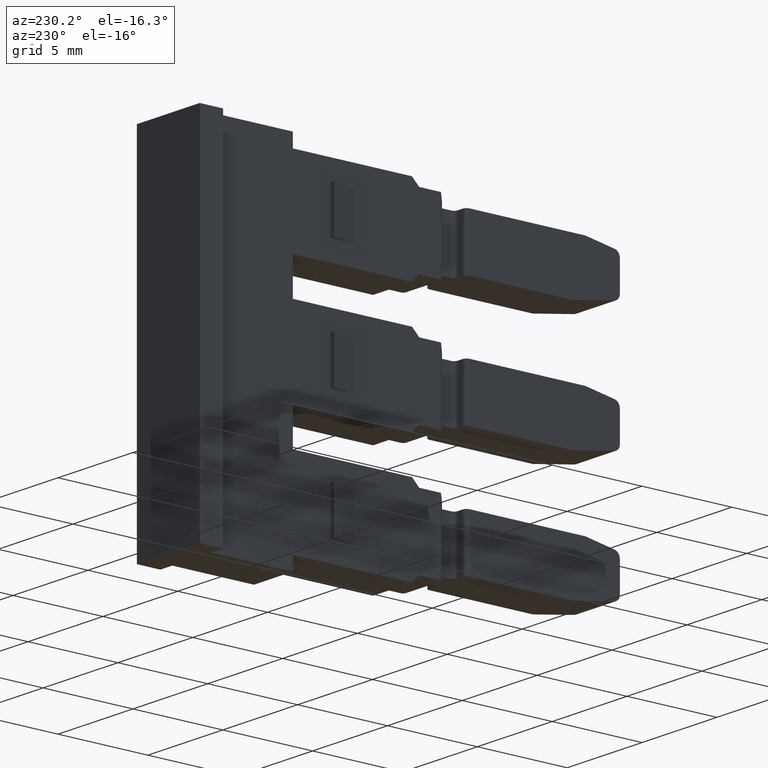
[diagram: clean part render]
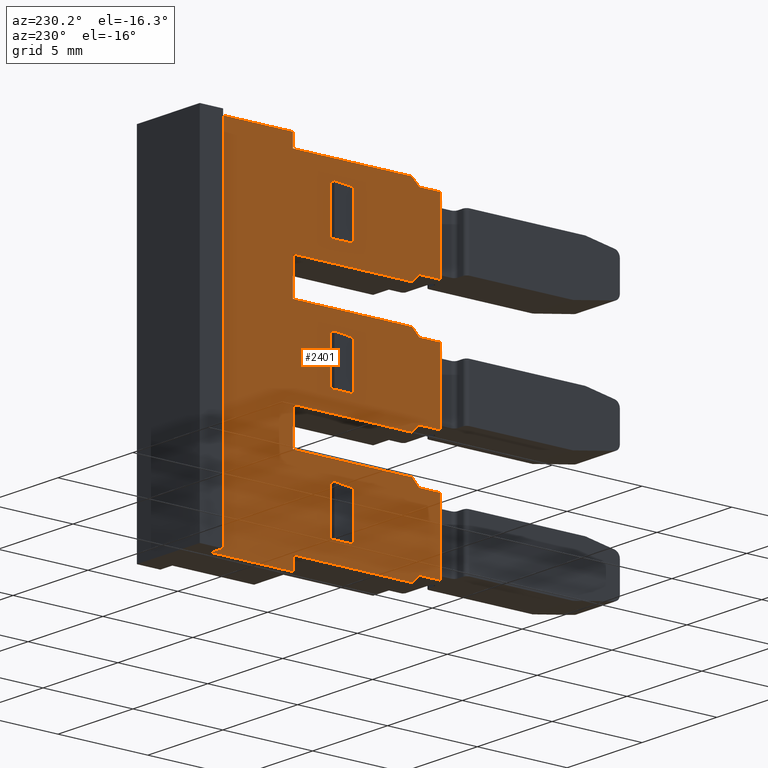
[diagram: same view with one face highlighted and labeled with its STEP entity id]
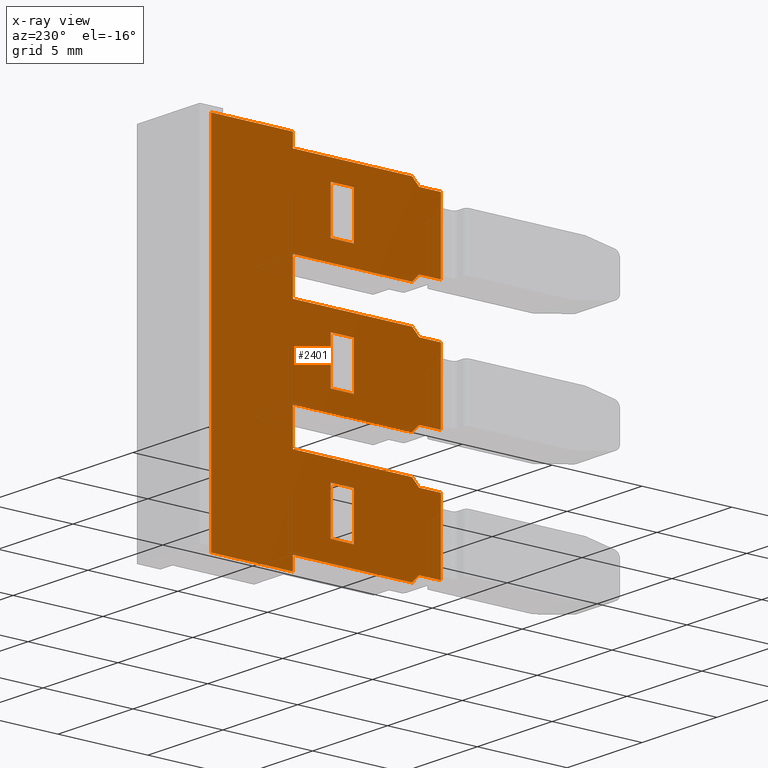
[diagram: x-ray of the same camera — body ghosted, the highlighted face saturated]
A machine part, auxiliary view. The second image highlights one B-rep face of the part: STEP entity #2401.
The next image is the same camera in x-ray: the body ghosted, the highlighted face saturated — about 0% of this face is hidden behind the body in this view.
In plain terms, the highlighted planar face has unit normal (-1, -0, -0).
Its self-contained STEP definition (entity closure, byte-faithful):
#57 = EDGE_LOOP ( 'NONE', ( #293, #287, #323, #309, #310, #345, #318, #368, #302, #358, #354, #321, #352, #331, #340, #339, #307, #289, #370, #375, #308, #334, #347, #346, #350, #306, #326, #304 ) ) ;
#62 = EDGE_LOOP ( 'NONE', ( #329, #367, #284, #335 ) ) ;
#79 = EDGE_LOOP ( 'NONE', ( #285, #299, #395, #400 ) ) ;
#86 = EDGE_LOOP ( 'NONE', ( #393, #324, #288, #327 ) ) ;
#284 = ORIENTED_EDGE ( 'NONE', *, *, #2499, .F. ) ;
#285 = ORIENTED_EDGE ( 'NONE', *, *, #2532, .T. ) ;
#287 = ORIENTED_EDGE ( 'NONE', *, *, #2589, .T. ) ;
#288 = ORIENTED_EDGE ( 'NONE', *, *, #2555, .T. ) ;
#289 = ORIENTED_EDGE ( 'NONE', *, *, #2605, .T. ) ;
#293 = ORIENTED_EDGE ( 'NONE', *, *, #2526, .T. ) ;
#299 = ORIENTED_EDGE ( 'NONE', *, *, #2543, .T. ) ;
#302 = ORIENTED_EDGE ( 'NONE', *, *, #2606, .F. ) ;
#304 = ORIENTED_EDGE ( 'NONE', *, *, #2578, .T. ) ;
#306 = ORIENTED_EDGE ( 'NONE', *, *, #2537, .T. ) ;
#307 = ORIENTED_EDGE ( 'NONE', *, *, #2506, .F. ) ;
#308 = ORIENTED_EDGE ( 'NONE', *, *, #2542, .F. ) ;
#309 = ORIENTED_EDGE ( 'NONE', *, *, #2564, .T. ) ;
#310 = ORIENTED_EDGE ( 'NONE', *, *, #2539, .F. ) ;
#318 = ORIENTED_EDGE ( 'NONE', *, *, #2544, .T. ) ;
#321 = ORIENTED_EDGE ( 'NONE', *, *, #2536, .T. ) ;
#323 = ORIENTED_EDGE ( 'NONE', *, *, #2615, .T. ) ;
#324 = ORIENTED_EDGE ( 'NONE', *, *, #2591, .T. ) ;
#326 = ORIENTED_EDGE ( 'NONE', *, *, #2442, .T. ) ;
#327 = ORIENTED_EDGE ( 'NONE', *, *, #2618, .F. ) ;
#329 = ORIENTED_EDGE ( 'NONE', *, *, #2463, .T. ) ;
#331 = ORIENTED_EDGE ( 'NONE', *, *, #2515, .F. ) ;
#334 = ORIENTED_EDGE ( 'NONE', *, *, #2608, .F. ) ;
#335 = ORIENTED_EDGE ( 'NONE', *, *, #2473, .F. ) ;
#339 = ORIENTED_EDGE ( 'NONE', *, *, #2480, .F. ) ;
#340 = ORIENTED_EDGE ( 'NONE', *, *, #2530, .T. ) ;
#345 = ORIENTED_EDGE ( 'NONE', *, *, #2602, .F. ) ;
#346 = ORIENTED_EDGE ( 'NONE', *, *, #2621, .F. ) ;
#347 = ORIENTED_EDGE ( 'NONE', *, *, #2614, .T. ) ;
#350 = ORIENTED_EDGE ( 'NONE', *, *, #2595, .F. ) ;
#352 = ORIENTED_EDGE ( 'NONE', *, *, #2475, .F. ) ;
#354 = ORIENTED_EDGE ( 'NONE', *, *, #2483, .T. ) ;
#358 = ORIENTED_EDGE ( 'NONE', *, *, #2612, .T. ) ;
#367 = ORIENTED_EDGE ( 'NONE', *, *, #2467, .T. ) ;
#368 = ORIENTED_EDGE ( 'NONE', *, *, #2552, .F. ) ;
#370 = ORIENTED_EDGE ( 'NONE', *, *, #2613, .T. ) ;
#375 = ORIENTED_EDGE ( 'NONE', *, *, #2575, .T. ) ;
#393 = ORIENTED_EDGE ( 'NONE', *, *, #2554, .F. ) ;
#395 = ORIENTED_EDGE ( 'NONE', *, *, #2582, .F. ) ;
#400 = ORIENTED_EDGE ( 'NONE', *, *, #2616, .F. ) ;
#776 = VERTEX_POINT ( 'NONE', #3822 ) ;
#779 = VERTEX_POINT ( 'NONE', #3806 ) ;
#789 = VERTEX_POINT ( 'NONE', #3812 ) ;
#790 = VERTEX_POINT ( 'NONE', #3828 ) ;
#795 = VERTEX_POINT ( 'NONE', #3838 ) ;
#798 = VERTEX_POINT ( 'NONE', #3836 ) ;
#800 = VERTEX_POINT ( 'NONE', #3837 ) ;
#806 = VERTEX_POINT ( 'NONE', #2761 ) ;
#812 = VERTEX_POINT ( 'NONE', #2780 ) ;
#814 = VERTEX_POINT ( 'NONE', #3840 ) ;
#815 = VERTEX_POINT ( 'NONE', #2805 ) ;
#817 = VERTEX_POINT ( 'NONE', #2749 ) ;
#820 = VERTEX_POINT ( 'NONE', #2754 ) ;
#826 = VERTEX_POINT ( 'NONE', #2788 ) ;
#827 = VERTEX_POINT ( 'NONE', #2753 ) ;
#831 = VERTEX_POINT ( 'NONE', #2789 ) ;
#832 = VERTEX_POINT ( 'NONE', #2765 ) ;
#836 = VERTEX_POINT ( 'NONE', #2800 ) ;
#837 = VERTEX_POINT ( 'NONE', #2791 ) ;
#840 = VERTEX_POINT ( 'NONE', #2785 ) ;
#974 = VECTOR ( 'NONE', #3450, 1000.000000000000000 ) ;
#976 = AXIS2_PLACEMENT_3D ( 'NONE', #3326, #3308, #3297 ) ;
#1000 = VECTOR ( 'NONE', #3567, 1000.000000000000100 ) ;
#1006 = VECTOR ( 'NONE', #3580, 1000.000000000000000 ) ;
#1019 = VECTOR ( 'NONE', #3623, 1000.000000000000000 ) ;
#1025 = VECTOR ( 'NONE', #3541, 1000.000000000000000 ) ;
#1027 = VECTOR ( 'NONE', #3612, 1000.000000000000100 ) ;
#1050 = VECTOR ( 'NONE', #3609, 1000.000000000000200 ) ;
#1053 = VECTOR ( 'NONE', #1473, 1000.000000000000000 ) ;
#1069 = VECTOR ( 'NONE', #1461, 1000.000000000000000 ) ;
#1071 = VECTOR ( 'NONE', #1442, 1000.000000000000100 ) ;
#1073 = VECTOR ( 'NONE', #1430, 1000.000000000000200 ) ;
#1077 = VECTOR ( 'NONE', #1476, 1000.000000000000200 ) ;
#1078 = VECTOR ( 'NONE', #1458, 1000.000000000000200 ) ;
#1079 = VECTOR ( 'NONE', #1507, 1000.000000000000100 ) ;
#1081 = VECTOR ( 'NONE', #1516, 1000.000000000000000 ) ;
#1093 = VECTOR ( 'NONE', #3672, 1000.000000000000100 ) ;
#1095 = VECTOR ( 'NONE', #1505, 1000.000000000000000 ) ;
#1096 = VECTOR ( 'NONE', #3651, 1000.000000000000100 ) ;
#1102 = VECTOR ( 'NONE', #1452, 1000.000000000000100 ) ;
#1114 = VECTOR ( 'NONE', #1616, 1000.000000000000200 ) ;
#1128 = VECTOR ( 'NONE', #1636, 1000.000000000000200 ) ;
#1132 = VECTOR ( 'NONE', #1502, 1000.000000000000000 ) ;
#1133 = VECTOR ( 'NONE', #1702, 1000.000000000000200 ) ;
#1138 = VECTOR ( 'NONE', #1556, 1000.000000000000200 ) ;
#1143 = VECTOR ( 'NONE', #1633, 1000.000000000000100 ) ;
#1145 = VECTOR ( 'NONE', #1674, 1000.000000000000200 ) ;
#1149 = VECTOR ( 'NONE', #1597, 1000.000000000000000 ) ;
#1153 = VECTOR ( 'NONE', #1488, 1000.000000000000200 ) ;
#1154 = VECTOR ( 'NONE', #1492, 1000.000000000000000 ) ;
#1158 = VECTOR ( 'NONE', #1657, 1000.000000000000100 ) ;
#1167 = VECTOR ( 'NONE', #1586, 1000.000000000000100 ) ;
#1174 = VECTOR ( 'NONE', #1694, 1000.000000000000200 ) ;
#1188 = VECTOR ( 'NONE', #1667, 1000.000000000000000 ) ;
#1190 = VECTOR ( 'NONE', #1671, 1000.000000000000000 ) ;
#1206 = VECTOR ( 'NONE', #1682, 1000.000000000000100 ) ;
#1208 = VECTOR ( 'NONE', #1747, 1000.000000000000200 ) ;
#1226 = VECTOR ( 'NONE', #1697, 1000.000000000000200 ) ;
#1227 = VECTOR ( 'NONE', #1733, 1000.000000000000100 ) ;
#1229 = VECTOR ( 'NONE', #1689, 1000.000000000000000 ) ;
#1231 = VECTOR ( 'NONE', #1677, 1000.000000000000000 ) ;
#1423 = LINE ( 'NONE', #1435, #1073 ) ;
#1430 = DIRECTION ( 'NONE',  ( -9.483855583750710300E-006, 0.9999999999550282000, -3.252725060354459100E-020 ) ) ;
#1435 = CARTESIAN_POINT ( 'NONE',  ( 1390.782561220172500, 1065.079098784066700, -1.950000000030801100 ) ) ;
#1436 = LINE ( 'NONE', #1510, #1095 ) ;
#1442 = DIRECTION ( 'NONE',  ( -9.483855581202906400E-006, 0.9999999999550282000, 0.0000000000000000000 ) ) ;
#1445 = CARTESIAN_POINT ( 'NONE',  ( 1390.782452648993700, 1076.657098783514800, -50.53084736897823600 ) ) ;
#1449 = LINE ( 'NONE', #1465, #1071 ) ;
#1452 = DIRECTION ( 'NONE',  ( -6.706098594455108100E-006, 0.7071067812184009800, -0.7071067811228941600 ) ) ;
#1456 = CARTESIAN_POINT ( 'NONE',  ( 1390.782475884440100, 1074.207098783628000, 9.050000000002389900 ) ) ;
#1457 = LINE ( 'NONE', #1471, #1078 ) ;
#1458 = DIRECTION ( 'NONE',  ( 9.483855583750710300E-006, -0.9999999999550282000, -1.120342500458063800E-016 ) ) ;
#1460 = LINE ( 'NONE', #1480, #1069 ) ;
#1461 = DIRECTION ( 'NONE',  ( -1.715311605593040000E-015, 4.605397349032985700E-014, 1.000000000000000000 ) ) ;
#1465 = CARTESIAN_POINT ( 'NONE',  ( 1390.782528045951300, 1068.707091196431500, -7.950000000000238200 ) ) ;
#1471 = CARTESIAN_POINT ( 'NONE',  ( 1390.782475884440100, 1074.077098783628100, -2.349999999997618000 ) ) ;
#1473 = DIRECTION ( 'NONE',  ( 1.715374260960958300E-015, -5.266050259226225000E-014, -1.000000000000000000 ) ) ;
#1474 = LINE ( 'NONE', #1456, #1077 ) ;
#1475 = LINE ( 'NONE', #1445, #1053 ) ;
#1476 = DIRECTION ( 'NONE',  ( -9.483855583750710300E-006, 0.9999999999550282000, 2.241010273421988200E-016 ) ) ;
#1479 = LINE ( 'NONE', #1481, #1102 ) ;
#1480 = CARTESIAN_POINT ( 'NONE',  ( 1390.782572619766800, 1063.877098784086000, -50.53084736897763200 ) ) ;
#1481 = CARTESIAN_POINT ( 'NONE',  ( 1390.782561219066800, 1065.079215367943600, -8.650091928178602200 ) ) ;
#1482 = CARTESIAN_POINT ( 'NONE',  ( 1390.782561220172500, 1065.079098784064400, -4.749999999964431100 ) ) ;
#1484 = CARTESIAN_POINT ( 'NONE',  ( 1390.782561219066800, 1065.079215367945800, 4.749908071821398200 ) ) ;
#1485 = LINE ( 'NONE', #1494, #1132 ) ;
#1488 = DIRECTION ( 'NONE',  ( 9.483855583750710300E-006, -0.9999999999550282000, 3.252725060354459100E-020 ) ) ;
#1492 = DIRECTION ( 'NONE',  ( 0.0000000000000000000, 0.0000000000000000000, 1.000000000000000000 ) ) ;
#1494 = CARTESIAN_POINT ( 'NONE',  ( 1390.782515716939100, 1070.007091196375300, 5.449999999999762100 ) ) ;
#1500 = CARTESIAN_POINT ( 'NONE',  ( 1390.782528045951300, 1068.707091196433800, 5.449999999999762100 ) ) ;
#1502 = DIRECTION ( 'NONE',  ( 0.0000000000000000000, 0.0000000000000000000, 1.000000000000000000 ) ) ;
#1505 = DIRECTION ( 'NONE',  ( 0.0000000000000000000, 0.0000000000000000000, 1.000000000000000000 ) ) ;
#1506 = CARTESIAN_POINT ( 'NONE',  ( 1390.782572619766800, 1063.877098784083700, -57.23084736897762800 ) ) ;
#1507 = DIRECTION ( 'NONE',  ( -6.706098594455108100E-006, 0.7071067812184009800, -0.7071067811228941600 ) ) ;
#1509 = LINE ( 'NONE', #1484, #1079 ) ;
#1510 = CARTESIAN_POINT ( 'NONE',  ( 1390.782515716939100, 1070.007091196373000, -7.950000000000238200 ) ) ;
#1511 = LINE ( 'NONE', #1506, #1081 ) ;
#1516 = DIRECTION ( 'NONE',  ( -1.715311605593040000E-015, 4.605397349032985700E-014, 1.000000000000000000 ) ) ;
#1517 = LINE ( 'NONE', #1482, #1153 ) ;
#1525 = LINE ( 'NONE', #1500, #1154 ) ;
#1535 = CARTESIAN_POINT ( 'NONE',  ( 1390.782475884440100, 1074.077098783625800, -9.049999999997618600 ) ) ;
#1555 = LINE ( 'NONE', #1535, #1138 ) ;
#1556 = DIRECTION ( 'NONE',  ( 9.483855583750710300E-006, -0.9999999999550282000, -1.120342500458063800E-016 ) ) ;
#1578 = CARTESIAN_POINT ( 'NONE',  ( 1390.782528045951300, 1068.707091196431500, -5.450000000000237300 ) ) ;
#1586 = DIRECTION ( 'NONE',  ( -9.483855581202906400E-006, 0.9999999999550282000, 0.0000000000000000000 ) ) ;
#1590 = LINE ( 'NONE', #1614, #1149 ) ;
#1593 = LINE ( 'NONE', #1604, #1114 ) ;
#1597 = DIRECTION ( 'NONE',  ( -9.483855604477593000E-006, 0.9999999999550282000, -3.252725063136165800E-020 ) ) ;
#1604 = CARTESIAN_POINT ( 'NONE',  ( 1390.782475884440100, 1074.207098783628000, 4.350000000002387100 ) ) ;
#1614 = CARTESIAN_POINT ( 'NONE',  ( 1390.782452648993700, 1076.657098783515500, 9.800000000002382800 ) ) ;
#1615 = LINE ( 'NONE', #1578, #1167 ) ;
#1616 = DIRECTION ( 'NONE',  ( 9.483855583750710300E-006, -0.9999999999550282000, -1.120342500458063800E-016 ) ) ;
#1624 = LINE ( 'NONE', #1625, #1145 ) ;
#1625 = CARTESIAN_POINT ( 'NONE',  ( 1390.782561220172500, 1065.079098784064400, -8.650000000030800600 ) ) ;
#1633 = DIRECTION ( 'NONE',  ( 6.706098596880307400E-006, -0.7071067812184009800, -0.7071067811228941600 ) ) ;
#1636 = DIRECTION ( 'NONE',  ( 9.483855583750710300E-006, -0.9999999999550282000, 3.252725060428649500E-020 ) ) ;
#1641 = CARTESIAN_POINT ( 'NONE',  ( 1390.782528045951300, 1068.707091196433800, 5.449999999999762100 ) ) ;
#1643 = LINE ( 'NONE', #1645, #1128 ) ;
#1645 = CARTESIAN_POINT ( 'NONE',  ( 1390.782441742559700, 1077.807098783458300, -9.799999999942420100 ) ) ;
#1647 = LINE ( 'NONE', #1648, #1143 ) ;
#1648 = CARTESIAN_POINT ( 'NONE',  ( 1390.782561219066800, 1065.079215367945800, 8.650091928183364600 ) ) ;
#1656 = LINE ( 'NONE', #1641, #1158 ) ;
#1657 = DIRECTION ( 'NONE',  ( -9.483855581202906400E-006, 0.9999999999550282000, 0.0000000000000000000 ) ) ;
#1666 = CARTESIAN_POINT ( 'NONE',  ( 1390.782528045951300, 1068.707091196431500, -7.950000000000238200 ) ) ;
#1667 = DIRECTION ( 'NONE',  ( 0.0000000000000000000, 0.0000000000000000000, 1.000000000000000000 ) ) ;
#1671 = DIRECTION ( 'NONE',  ( -1.715374260960958300E-015, 5.266050259225974500E-014, 1.000000000000000000 ) ) ;
#1672 = LINE ( 'NONE', #1693, #1226 ) ;
#1673 = LINE ( 'NONE', #1688, #1229 ) ;
#1674 = DIRECTION ( 'NONE',  ( -9.483855583750710300E-006, 0.9999999999550282000, -3.252725060354459100E-020 ) ) ;
#1677 = DIRECTION ( 'NONE',  ( -1.715311605593040000E-015, 4.605397349032985700E-014, 1.000000000000000000 ) ) ;
#1678 = CARTESIAN_POINT ( 'NONE',  ( 1390.782475884440100, 1074.077098783628100, 2.350000000002384800 ) ) ;
#1680 = LINE ( 'NONE', #1698, #1174 ) ;
#1682 = DIRECTION ( 'NONE',  ( 6.706098596880307400E-006, -0.7071067812184009800, -0.7071067811228941600 ) ) ;
#1683 = CARTESIAN_POINT ( 'NONE',  ( 1390.782495781569200, 1072.109098783714900, -50.53084736897798700 ) ) ;
#1684 = LINE ( 'NONE', #1678, #1133 ) ;
#1688 = CARTESIAN_POINT ( 'NONE',  ( 1390.782495781569000, 1072.109098783723100, -10.84999999986497200 ) ) ;
#1689 = DIRECTION ( 'NONE',  ( -1.714874836513625000E-015, 1.626362526272112000E-020, 1.000000000000000000 ) ) ;
#1693 = CARTESIAN_POINT ( 'NONE',  ( 1390.782561220172500, 1065.079098784066700, 4.749999999969201500 ) ) ;
#1694 = DIRECTION ( 'NONE',  ( -9.483855583750710300E-006, 0.9999999999550282000, 2.241010273421988200E-016 ) ) ;
#1697 = DIRECTION ( 'NONE',  ( -9.483855583750710300E-006, 0.9999999999550282000, -3.252725060354459100E-020 ) ) ;
#1698 = CARTESIAN_POINT ( 'NONE',  ( 1390.782475884440100, 1074.077098783625800, -4.349999999997614900 ) ) ;
#1699 = CARTESIAN_POINT ( 'NONE',  ( 1390.782561219066800, 1065.079215367943600, -4.749908071816631300 ) ) ;
#1702 = DIRECTION ( 'NONE',  ( -9.483855583750710300E-006, 0.9999999999550282000, 2.241010273421988200E-016 ) ) ;
#1704 = LINE ( 'NONE', #1708, #1231 ) ;
#1705 = LINE ( 'NONE', #1699, #1206 ) ;
#1706 = LINE ( 'NONE', #1683, #1190 ) ;
#1708 = CARTESIAN_POINT ( 'NONE',  ( 1390.782572619766800, 1063.877098784085800, -50.53084736897763200 ) ) ;
#1711 = LINE ( 'NONE', #1666, #1188 ) ;
#1728 = LINE ( 'NONE', #1754, #1208 ) ;
#1732 = CARTESIAN_POINT ( 'NONE',  ( 1390.782528045951300, 1068.707091196433800, 7.949999999999763000 ) ) ;
#1733 = DIRECTION ( 'NONE',  ( -9.483855581202906400E-006, 0.9999999999550282000, 0.0000000000000000000 ) ) ;
#1747 = DIRECTION ( 'NONE',  ( 9.483855583750710300E-006, -0.9999999999550282000, 3.252725060354459100E-020 ) ) ;
#1754 = CARTESIAN_POINT ( 'NONE',  ( 1390.782561220172500, 1065.079098784066700, 8.650000000035568300 ) ) ;
#1755 = LINE ( 'NONE', #1732, #1227 ) ;
#2134 = CARTESIAN_POINT ( 'NONE',  ( 1390.782495781569200, 1072.109098783715600, 9.800000000002382800 ) ) ;
#2141 = CARTESIAN_POINT ( 'NONE',  ( 1390.782515716939100, 1070.007091196375300, -1.250000000000237800 ) ) ;
#2152 = CARTESIAN_POINT ( 'NONE',  ( 1390.782557426396400, 1065.479123439818300, 2.350000000002382600 ) ) ;
#2174 = CARTESIAN_POINT ( 'NONE',  ( 1390.782515716939100, 1070.007091196375300, 1.249999999999762600 ) ) ;
#2189 = CARTESIAN_POINT ( 'NONE',  ( 1390.782561219938800, 1065.079123439797700, -1.950000000030730700 ) ) ;
#2194 = CARTESIAN_POINT ( 'NONE',  ( 1390.782572619766800, 1063.877098784088700, -1.950000000030801300 ) ) ;
#2197 = CARTESIAN_POINT ( 'NONE',  ( 1390.782495781569000, 1072.109098783715400, -4.349999999997648600 ) ) ;
#2201 = CARTESIAN_POINT ( 'NONE',  ( 1390.782528045951300, 1068.707091196433800, -1.250000000000237800 ) ) ;
#2209 = CARTESIAN_POINT ( 'NONE',  ( 1390.782572619766800, 1063.877098784086500, -8.650000000030800600 ) ) ;
#2210 = CARTESIAN_POINT ( 'NONE',  ( 1390.782452648993700, 1076.657098783515500, 9.800000000002382800 ) ) ;
#2212 = CARTESIAN_POINT ( 'NONE',  ( 1390.782572619766800, 1063.877098784088500, 1.950000000035568600 ) ) ;
#2222 = CARTESIAN_POINT ( 'NONE',  ( 1390.782557426396400, 1065.479123439818500, -2.349999999997617100 ) ) ;
#2230 = CARTESIAN_POINT ( 'NONE',  ( 1390.782495781569000, 1072.109098783725400, -2.349999999997616200 ) ) ;
#2233 = CARTESIAN_POINT ( 'NONE',  ( 1390.782528045717800, 1068.707091196433800, 1.249999999999772200 ) ) ;
#2249 = CARTESIAN_POINT ( 'NONE',  ( 1390.782495781569200, 1072.109098783718100, 9.050000000002389900 ) ) ;
#2267 = CARTESIAN_POINT ( 'NONE',  ( 1390.782495781569000, 1072.109098783717600, 2.350000000002352000 ) ) ;
#2282 = CARTESIAN_POINT ( 'NONE',  ( 1390.782452648993700, 1076.657098783515000, -9.799999999942288700 ) ) ;
#2290 = CARTESIAN_POINT ( 'NONE',  ( 1390.782561219938800, 1065.079123439795700, -8.650000000030729600 ) ) ;
#2291 = CARTESIAN_POINT ( 'NONE',  ( 1390.782561219938800, 1065.079123439802700, 1.950000000040209600 ) ) ;
#2297 = CARTESIAN_POINT ( 'NONE',  ( 1390.782561219938800, 1065.079123439800500, -4.749999999959790400 ) ) ;
#2401 = ADVANCED_FACE ( 'NONE', ( #3324, #3325, #3341, #3302 ), #3319, .T. ) ;
#2442 = EDGE_CURVE ( 'NONE', #3802, #3752, #3459, .T. ) ;
#2463 = EDGE_CURVE ( 'NONE', #3762, #3756, #3548, .T. ) ;
#2467 = EDGE_CURVE ( 'NONE', #3756, #3755, #3539, .T. ) ;
#2473 = EDGE_CURVE ( 'NONE', #3762, #3766, #3574, .T. ) ;
#2475 = EDGE_CURVE ( 'NONE', #3814, #3810, #3544, .T. ) ;
#2480 = EDGE_CURVE ( 'NONE', #3848, #3764, #3618, .T. ) ;
#2483 = EDGE_CURVE ( 'NONE', #3771, #3821, #3585, .T. ) ;
#2499 = EDGE_CURVE ( 'NONE', #3766, #3755, #3633, .T. ) ;
#2506 = EDGE_CURVE ( 'NONE', #3746, #3848, #3660, .T. ) ;
#2515 = EDGE_CURVE ( 'NONE', #3765, #3814, #1423, .T. ) ;
#2526 = EDGE_CURVE ( 'NONE', #3813, #3860, #1475, .T. ) ;
#2530 = EDGE_CURVE ( 'NONE', #3765, #3764, #1460, .T. ) ;
#2532 = EDGE_CURVE ( 'NONE', #840, #817, #1449, .T. ) ;
#2536 = EDGE_CURVE ( 'NONE', #3821, #3810, #1457, .T. ) ;
#2537 = EDGE_CURVE ( 'NONE', #800, #3802, #1474, .T. ) ;
#2539 = EDGE_CURVE ( 'NONE', #3841, #789, #1479, .T. ) ;
#2542 = EDGE_CURVE ( 'NONE', #790, #827, #1509, .T. ) ;
#2543 = EDGE_CURVE ( 'NONE', #817, #806, #1436, .T. ) ;
#2544 = EDGE_CURVE ( 'NONE', #3804, #832, #1511, .T. ) ;
#2552 = EDGE_CURVE ( 'NONE', #3854, #832, #1517, .T. ) ;
#2554 = EDGE_CURVE ( 'NONE', #798, #814, #1525, .T. ) ;
#2555 = EDGE_CURVE ( 'NONE', #837, #776, #1485, .T. ) ;
#2564 = EDGE_CURVE ( 'NONE', #815, #789, #1555, .T. ) ;
#2575 = EDGE_CURVE ( 'NONE', #836, #827, #1593, .T. ) ;
#2578 = EDGE_CURVE ( 'NONE', #3752, #3813, #1590, .T. ) ;
#2582 = EDGE_CURVE ( 'NONE', #820, #806, #1615, .T. ) ;
#2589 = EDGE_CURVE ( 'NONE', #3860, #779, #1643, .T. ) ;
#2591 = EDGE_CURVE ( 'NONE', #798, #837, #1656, .T. ) ;
#2595 = EDGE_CURVE ( 'NONE', #800, #831, #1647, .T. ) ;
#2602 = EDGE_CURVE ( 'NONE', #3804, #3841, #1624, .T. ) ;
#2605 = EDGE_CURVE ( 'NONE', #3746, #3856, #1684, .T. ) ;
#2606 = EDGE_CURVE ( 'NONE', #826, #3854, #1705, .T. ) ;
#2608 = EDGE_CURVE ( 'NONE', #795, #790, #1672, .T. ) ;
#2612 = EDGE_CURVE ( 'NONE', #826, #3771, #1680, .T. ) ;
#2613 = EDGE_CURVE ( 'NONE', #3856, #836, #1706, .T. ) ;
#2614 = EDGE_CURVE ( 'NONE', #795, #812, #1704, .T. ) ;
#2615 = EDGE_CURVE ( 'NONE', #779, #815, #1673, .T. ) ;
#2616 = EDGE_CURVE ( 'NONE', #840, #820, #1711, .T. ) ;
#2618 = EDGE_CURVE ( 'NONE', #814, #776, #1755, .T. ) ;
#2621 = EDGE_CURVE ( 'NONE', #831, #812, #1728, .T. ) ;
#2749 = CARTESIAN_POINT ( 'NONE',  ( 1390.782515716939100, 1070.007091196373000, -7.950000000000238200 ) ) ;
#2753 = CARTESIAN_POINT ( 'NONE',  ( 1390.782557426396400, 1065.479123439818500, 4.350000000002383500 ) ) ;
#2754 = CARTESIAN_POINT ( 'NONE',  ( 1390.782528045717800, 1068.707091196431500, -5.450000000000228400 ) ) ;
#2761 = CARTESIAN_POINT ( 'NONE',  ( 1390.782515716939100, 1070.007091196373000, -5.450000000000237300 ) ) ;
#2765 = CARTESIAN_POINT ( 'NONE',  ( 1390.782572619766800, 1063.877098784086200, -4.749999999964432000 ) ) ;
#2780 = CARTESIAN_POINT ( 'NONE',  ( 1390.782572619766800, 1063.877098784088500, 8.650000000035568300 ) ) ;
#2785 = CARTESIAN_POINT ( 'NONE',  ( 1390.782528045951300, 1068.707091196431500, -7.950000000000238200 ) ) ;
#2788 = CARTESIAN_POINT ( 'NONE',  ( 1390.782557426396400, 1065.479123439816000, -4.349999999997617600 ) ) ;
#2789 = CARTESIAN_POINT ( 'NONE',  ( 1390.782561219938800, 1065.079123439802700, 8.650000000040202900 ) ) ;
#2791 = CARTESIAN_POINT ( 'NONE',  ( 1390.782515716705300, 1070.007091196375300, 5.449999999999762100 ) ) ;
#2800 = CARTESIAN_POINT ( 'NONE',  ( 1390.782495781569200, 1072.109098783717900, 4.350000000002387100 ) ) ;
#2805 = CARTESIAN_POINT ( 'NONE',  ( 1390.782495781569000, 1072.109098783723100, -9.049999999997615100 ) ) ;
#3297 = DIRECTION ( 'NONE',  ( 9.483855583750710300E-006, -0.9999999999550282000, 0.0000000000000000000 ) ) ;
#3302 = FACE_BOUND ( 'NONE', #79, .T. ) ;
#3308 = DIRECTION ( 'NONE',  ( -0.9999999999550283100, -9.483855583750712000E-006, -1.714874836282262200E-015 ) ) ;
#3319 = PLANE ( 'NONE',  #976 ) ;
#3324 = FACE_OUTER_BOUND ( 'NONE', #57, .T. ) ;
#3325 = FACE_BOUND ( 'NONE', #86, .T. ) ;
#3326 = CARTESIAN_POINT ( 'NONE',  ( 1390.782475884440100, 1074.077098783628100, -50.53084736897810100 ) ) ;
#3341 = FACE_BOUND ( 'NONE', #62, .T. ) ;
#3450 = DIRECTION ( 'NONE',  ( -1.715374260960958300E-015, 5.266050259225974500E-014, 1.000000000000000000 ) ) ;
#3459 = LINE ( 'NONE', #3469, #974 ) ;
#3469 = CARTESIAN_POINT ( 'NONE',  ( 1390.782495781569200, 1072.109098783714900, -50.53084736897798700 ) ) ;
#3539 = LINE ( 'NONE', #3551, #1025 ) ;
#3541 = DIRECTION ( 'NONE',  ( 0.0000000000000000000, 0.0000000000000000000, 1.000000000000000000 ) ) ;
#3544 = LINE ( 'NONE', #3546, #1027 ) ;
#3546 = CARTESIAN_POINT ( 'NONE',  ( 1390.782561219066800, 1065.079215367945800, -1.950091928178601800 ) ) ;
#3548 = LINE ( 'NONE', #3559, #1000 ) ;
#3551 = CARTESIAN_POINT ( 'NONE',  ( 1390.782515716939100, 1070.007091196375300, -1.250000000000237800 ) ) ;
#3553 = CARTESIAN_POINT ( 'NONE',  ( 1390.782528045951300, 1068.707091196433800, -1.250000000000237800 ) ) ;
#3559 = CARTESIAN_POINT ( 'NONE',  ( 1390.782528045951300, 1068.707091196433800, -1.250000000000237800 ) ) ;
#3567 = DIRECTION ( 'NONE',  ( -9.483855581202906400E-006, 0.9999999999550282000, 0.0000000000000000000 ) ) ;
#3574 = LINE ( 'NONE', #3553, #1006 ) ;
#3580 = DIRECTION ( 'NONE',  ( 0.0000000000000000000, 0.0000000000000000000, 1.000000000000000000 ) ) ;
#3585 = LINE ( 'NONE', #3620, #1019 ) ;
#3595 = CARTESIAN_POINT ( 'NONE',  ( 1390.782561220172500, 1065.079098784066700, 1.950000000035568800 ) ) ;
#3609 = DIRECTION ( 'NONE',  ( 9.483855583750710300E-006, -0.9999999999550282000, 3.252725060354459100E-020 ) ) ;
#3612 = DIRECTION ( 'NONE',  ( -6.706098594455108100E-006, 0.7071067812184009800, -0.7071067811228941600 ) ) ;
#3618 = LINE ( 'NONE', #3595, #1050 ) ;
#3620 = CARTESIAN_POINT ( 'NONE',  ( 1390.782495781569000, 1072.109098783725400, -4.149999999864970600 ) ) ;
#3623 = DIRECTION ( 'NONE',  ( -1.714874836513625000E-015, 1.626362526272112000E-020, 1.000000000000000000 ) ) ;
#3633 = LINE ( 'NONE', #3670, #1096 ) ;
#3651 = DIRECTION ( 'NONE',  ( -9.483855581202906400E-006, 0.9999999999550282000, 0.0000000000000000000 ) ) ;
#3660 = LINE ( 'NONE', #3667, #1093 ) ;
#3667 = CARTESIAN_POINT ( 'NONE',  ( 1390.782561219066800, 1065.079215367945800, 1.950091928183369300 ) ) ;
#3670 = CARTESIAN_POINT ( 'NONE',  ( 1390.782528045951300, 1068.707091196433800, 1.249999999999762600 ) ) ;
#3672 = DIRECTION ( 'NONE',  ( 6.706098596880307400E-006, -0.7071067812184009800, -0.7071067811228941600 ) ) ;
#3746 = VERTEX_POINT ( 'NONE', #2152 ) ;
#3752 = VERTEX_POINT ( 'NONE', #2134 ) ;
#3755 = VERTEX_POINT ( 'NONE', #2174 ) ;
#3756 = VERTEX_POINT ( 'NONE', #2141 ) ;
#3762 = VERTEX_POINT ( 'NONE', #2201 ) ;
#3764 = VERTEX_POINT ( 'NONE', #2212 ) ;
#3765 = VERTEX_POINT ( 'NONE', #2194 ) ;
#3766 = VERTEX_POINT ( 'NONE', #2233 ) ;
#3771 = VERTEX_POINT ( 'NONE', #2197 ) ;
#3802 = VERTEX_POINT ( 'NONE', #2249 ) ;
#3804 = VERTEX_POINT ( 'NONE', #2209 ) ;
#3806 = CARTESIAN_POINT ( 'NONE',  ( 1390.782495781569000, 1072.109098783723100, -9.799999999942420100 ) ) ;
#3810 = VERTEX_POINT ( 'NONE', #2222 ) ;
#3812 = CARTESIAN_POINT ( 'NONE',  ( 1390.782557426396400, 1065.479123439816200, -9.049999999997616800 ) ) ;
#3813 = VERTEX_POINT ( 'NONE', #2210 ) ;
#3814 = VERTEX_POINT ( 'NONE', #2189 ) ;
#3821 = VERTEX_POINT ( 'NONE', #2230 ) ;
#3822 = CARTESIAN_POINT ( 'NONE',  ( 1390.782515716939100, 1070.007091196375300, 7.949999999999763000 ) ) ;
#3828 = CARTESIAN_POINT ( 'NONE',  ( 1390.782561219938800, 1065.079123439797700, 4.749999999969269900 ) ) ;
#3836 = CARTESIAN_POINT ( 'NONE',  ( 1390.782528045717500, 1068.707091197649100, 5.449999999999762100 ) ) ;
#3837 = CARTESIAN_POINT ( 'NONE',  ( 1390.782557426396400, 1065.479123439818300, 9.050000000002388100 ) ) ;
#3838 = CARTESIAN_POINT ( 'NONE',  ( 1390.782572619766800, 1063.877098784088700, 4.749999999969201500 ) ) ;
#3840 = CARTESIAN_POINT ( 'NONE',  ( 1390.782528045717500, 1068.707091196433800, 7.949999999999763000 ) ) ;
#3841 = VERTEX_POINT ( 'NONE', #2290 ) ;
#3848 = VERTEX_POINT ( 'NONE', #2291 ) ;
#3854 = VERTEX_POINT ( 'NONE', #2297 ) ;
#3856 = VERTEX_POINT ( 'NONE', #2267 ) ;
#3860 = VERTEX_POINT ( 'NONE', #2282 ) ;